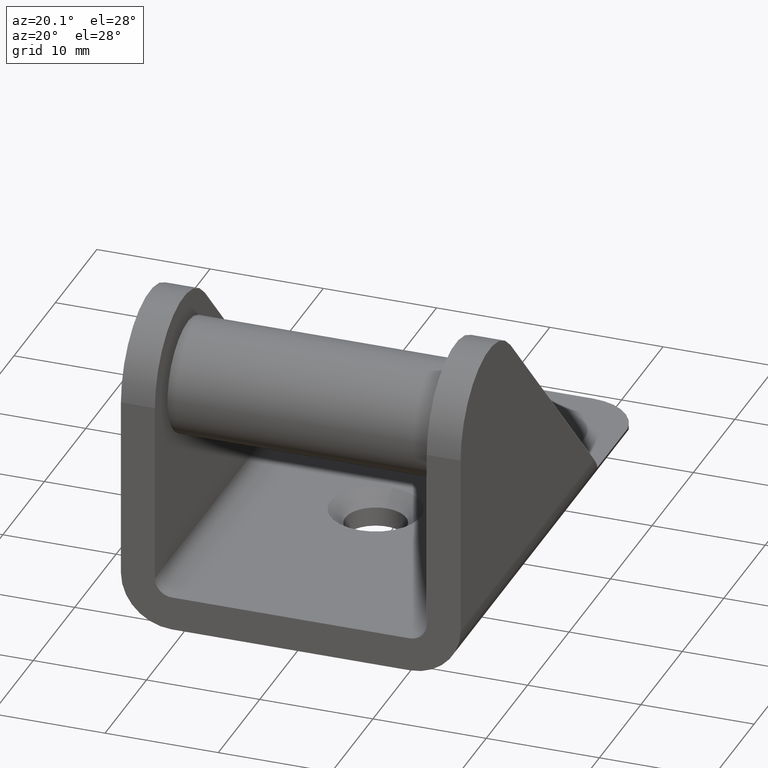
[diagram: clean part render]
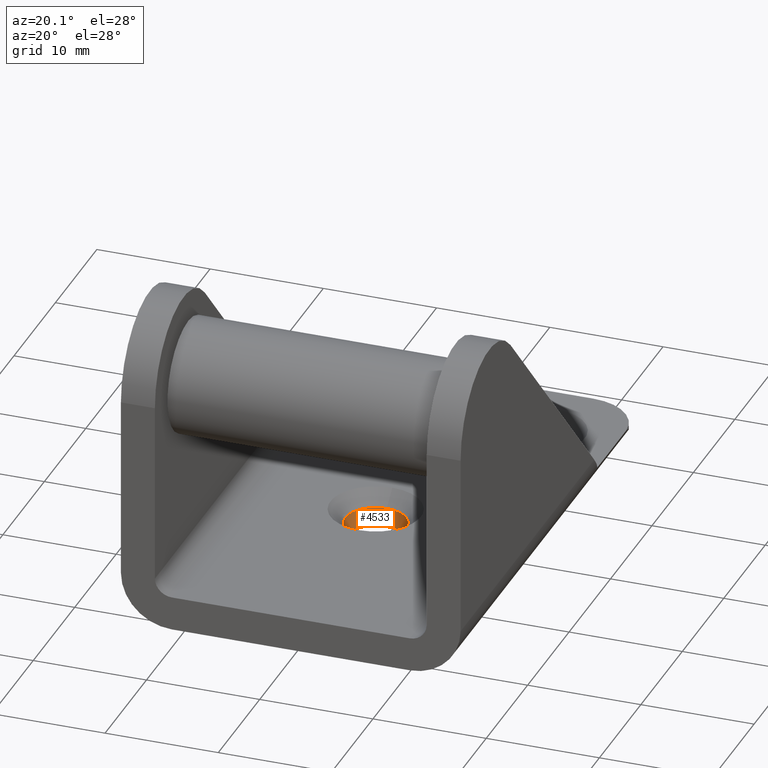
[diagram: same view with one face highlighted and labeled with its STEP entity id]
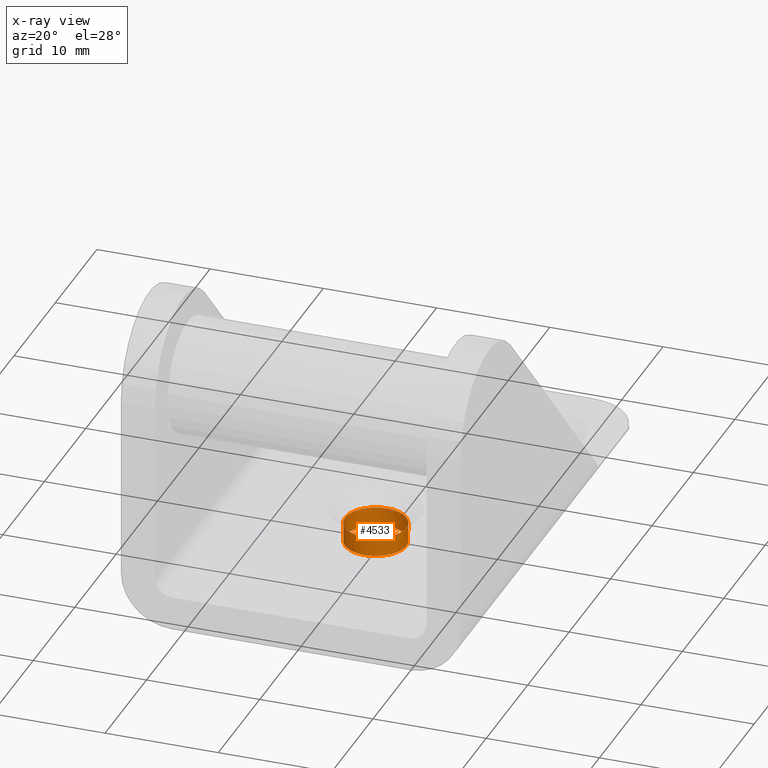
[diagram: x-ray of the same camera — body ghosted, the highlighted face saturated]
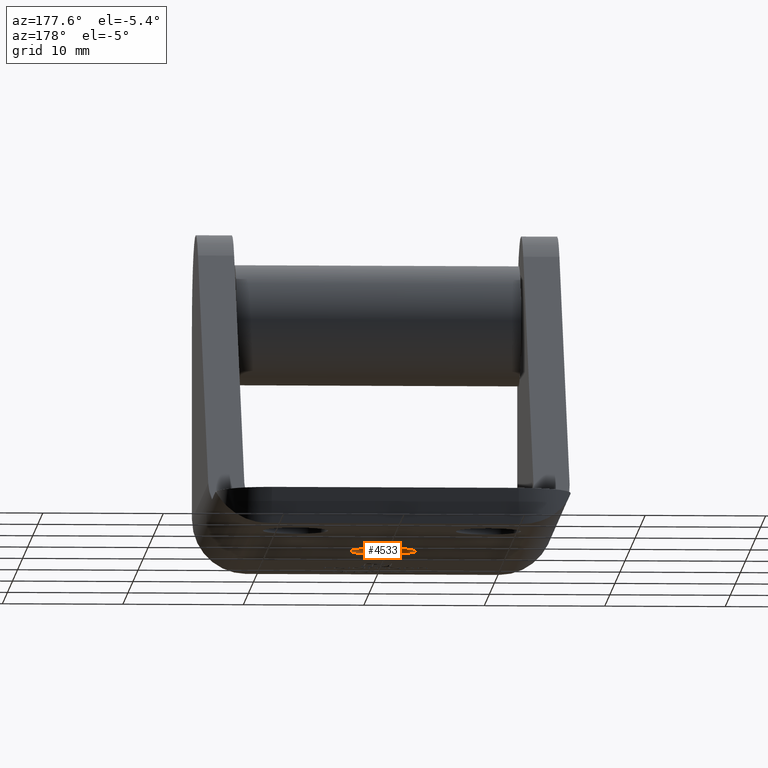
[diagram: same view with one face highlighted and labeled with its STEP entity id]
A machine part, auxiliary view. The second image highlights one B-rep face of the part: STEP entity #4533.
The next image is the same camera in x-ray: the body ghosted, the highlighted face saturated — about 0% of this face is hidden behind the body in this view.
A second angle (auxiliary view) of the same face is appended — the face is thin or edge-on in the first view.
In plain terms, the highlighted cylindrical surface (bore or boss wall) has radius 2.7 mm, axis along (-0, -0, -1).
Its self-contained STEP definition (entity closure, byte-faithful):
#604 = CIRCLE ( 'NONE', #4338, 2.700000000000000178 ) ;
#671 = CARTESIAN_POINT ( 'NONE',  ( -2.700000000000000178, -2.000000000000001776, -13.75000000000000178 ) ) ;
#891 = CIRCLE ( 'NONE', #15613, 2.700000000000000178 ) ;
#936 = EDGE_LOOP ( 'NONE', ( #15598 ) ) ;
#1199 = DIRECTION ( 'NONE',  ( 0.000000000000000000, 0.000000000000000000, -1.000000000000000000 ) ) ;
#1818 = VERTEX_POINT ( 'NONE', #671 ) ;
#2002 = CARTESIAN_POINT ( 'NONE',  ( 0.000000000000000000, -2.000000000000001776, -12.05000000000001847 ) ) ;
#2988 = CARTESIAN_POINT ( 'NONE',  ( -2.700000000000000178, -2.000000000000001776, -12.05000000000001847 ) ) ;
#3239 = DIRECTION ( 'NONE',  ( -0.000000000000000000, -0.000000000000000000, 1.000000000000000000 ) ) ;
#4338 = AXIS2_PLACEMENT_3D ( 'NONE', #2002, #3239, #10402 ) ;
#4476 = FACE_OUTER_BOUND ( 'NONE', #936, .T. ) ;
#4533 = ADVANCED_FACE ( 'NONE', ( #9805, #4476 ), #12253, .F. ) ;
#4783 = ORIENTED_EDGE ( 'NONE', *, *, #6515, .T. ) ;
#5177 = AXIS2_PLACEMENT_3D ( 'NONE', #15550, #14456, #8349 ) ;
#6044 = CARTESIAN_POINT ( 'NONE',  ( 0.000000000000000000, -2.000000000000001776, -13.75000000000000178 ) ) ;
#6515 = EDGE_CURVE ( 'NONE', #11521, #11521, #604, .T. ) ;
#8349 = DIRECTION ( 'NONE',  ( -1.000000000000000000, 0.000000000000000000, 0.000000000000000000 ) ) ;
#9195 = EDGE_LOOP ( 'NONE', ( #4783 ) ) ;
#9805 = FACE_OUTER_BOUND ( 'NONE', #9195, .T. ) ;
#10402 = DIRECTION ( 'NONE',  ( -1.000000000000000000, 0.000000000000000000, 0.000000000000000000 ) ) ;
#11521 = VERTEX_POINT ( 'NONE', #2988 ) ;
#12253 = CYLINDRICAL_SURFACE ( 'NONE', #5177, 2.700000000000000178 ) ;
#13302 = DIRECTION ( 'NONE',  ( -1.000000000000000000, 0.000000000000000000, 0.000000000000000000 ) ) ;
#14234 = EDGE_CURVE ( 'NONE', #1818, #1818, #891, .T. ) ;
#14456 = DIRECTION ( 'NONE',  ( -0.000000000000000000, -0.000000000000000000, -1.000000000000000000 ) ) ;
#15550 = CARTESIAN_POINT ( 'NONE',  ( 0.000000000000000000, -2.000000000000001776, 16.24999999999999645 ) ) ;
#15598 = ORIENTED_EDGE ( 'NONE', *, *, #14234, .T. ) ;
#15613 = AXIS2_PLACEMENT_3D ( 'NONE', #6044, #1199, #13302 ) ;